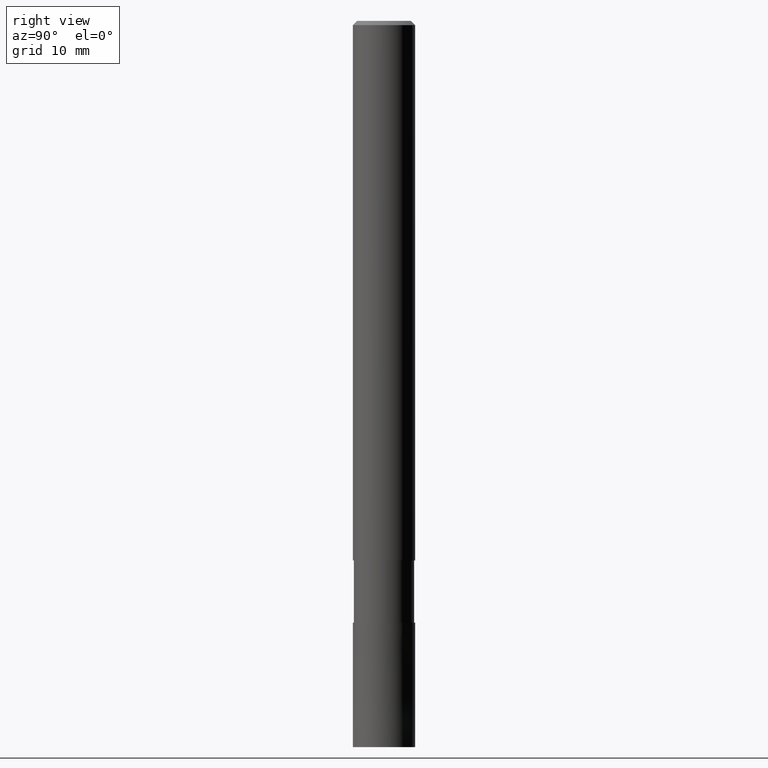
[diagram: clean part render]
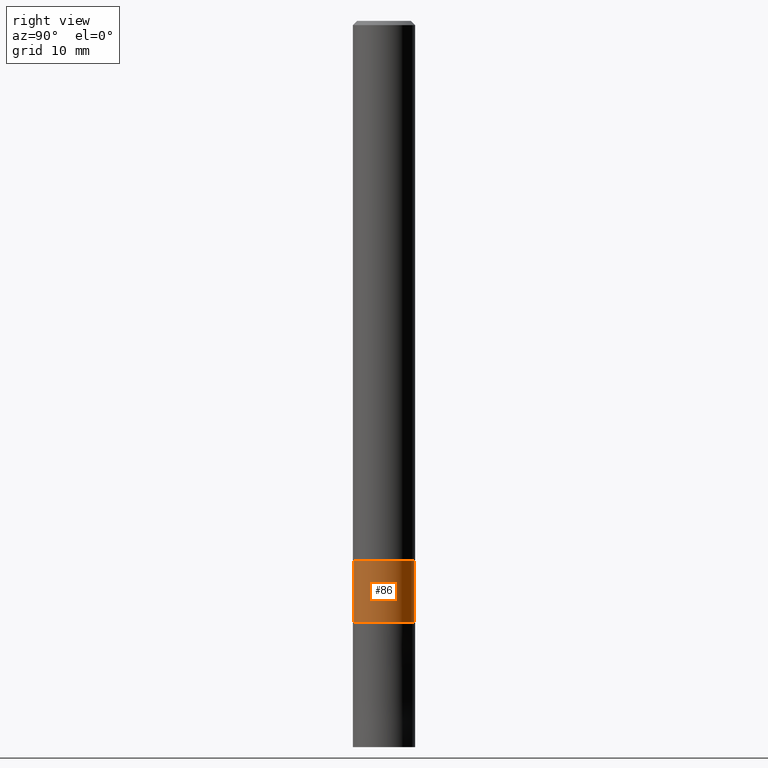
[diagram: same view with one face highlighted and labeled with its STEP entity id]
A machine part, right view. The second image highlights one B-rep face of the part: STEP entity #86.
In plain terms, the highlighted cylindrical surface (edge-blend (fillet) strip) has radius 2.9 mm, axis along (-0, -0, 1).
Its self-contained STEP definition (entity closure, byte-faithful):
#84=EDGE_CURVE('',#102,#168,#205,.T.);
#86=ADVANCED_FACE('',(#207),#208,.T.);
#102=VERTEX_POINT('',#227);
#138=EDGE_CURVE('',#146,#102,#266,.T.);
#146=VERTEX_POINT('',#275);
#154=VERTEX_POINT('',#286);
#156=EDGE_CURVE('',#168,#154,#288,.T.);
#168=VERTEX_POINT('',#302);
#172=EDGE_CURVE('',#146,#154,#307,.T.);
#205=CIRCLE('',#333,2.89995);
#207=FACE_OUTER_BOUND('',#335,.T.);
#208=CYLINDRICAL_SURFACE('',#336,2.89995);
#227=CARTESIAN_POINT('',(0.0,2.89995,-58.0));
#266=LINE('',#410,#411);
#275=CARTESIAN_POINT('',(0.0,2.89995,-52.0));
#286=CARTESIAN_POINT('',(3.5512971957672E-016,-2.89995,-52.0));
#288=LINE('',#436,#437);
#302=CARTESIAN_POINT('',(3.5512971957672E-016,-2.89995,-58.0));
#307=CIRCLE('',#461,2.89995);
#333=AXIS2_PLACEMENT_3D('',#476,#477,#478);
#335=EDGE_LOOP('',(#480,#481,#482,#483));
#336=AXIS2_PLACEMENT_3D('',#484,#485,#486);
#410=CARTESIAN_POINT('',(-3.5512971957672E-016,2.89995,-55.0));
#411=VECTOR('',#561,1.0);
#436=CARTESIAN_POINT('',(3.5512971957672E-016,-2.89995,-55.0));
#437=VECTOR('',#585,1.0);
#461=AXIS2_PLACEMENT_3D('',#615,#616,#617);
#476=CARTESIAN_POINT('',(0.0,0.0,-58.0));
#477=DIRECTION('',(0.0,0.0,-1.0));
#478=DIRECTION('',(0.0,1.0,0.0));
#480=ORIENTED_EDGE('',*,*,#138,.F.);
#481=ORIENTED_EDGE('',*,*,#172,.T.);
#482=ORIENTED_EDGE('',*,*,#156,.F.);
#483=ORIENTED_EDGE('',*,*,#84,.F.);
#484=CARTESIAN_POINT('',(0.0,0.0,-55.0));
#485=DIRECTION('',(-0.0,-0.0,1.0));
#486=DIRECTION('',(0.0,1.0,0.0));
#561=DIRECTION('',(0.0,0.0,-1.0));
#585=DIRECTION('',(-0.0,-0.0,1.0));
#615=CARTESIAN_POINT('',(0.0,0.0,-52.0));
#616=DIRECTION('',(0.0,0.0,-1.0));
#617=DIRECTION('',(0.0,1.0,0.0));